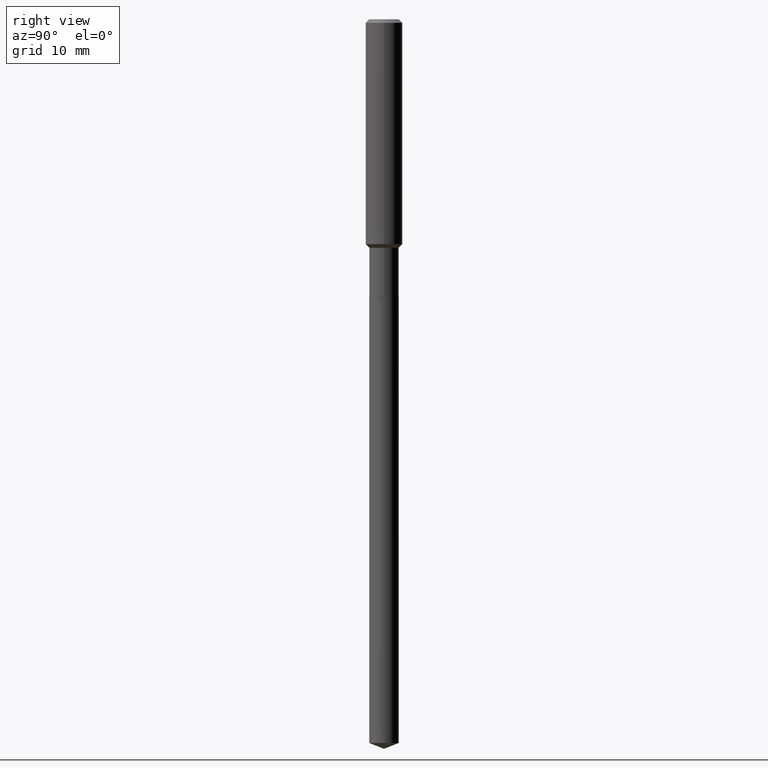
[diagram: clean part render]
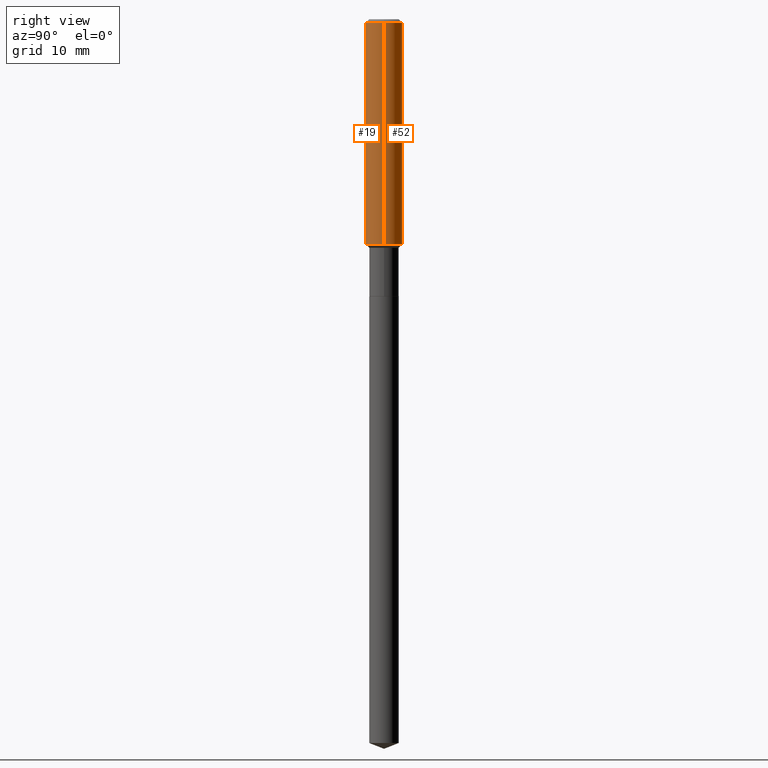
[diagram: same view with one multi-face feature highlighted, each face labeled with its STEP entity id]
A machine part, right view. The highlighted faces form ONE feature: a constant-radius fillet chain: 2 tangent blend faces with common blend radius 2.9997 mm. The faces share edges in the B-rep.
Their STEP definitions:
[1] entity #52 (Cylinder):
#25 = CARTESIAN_POINT ( 'NONE',  ( 5.776197320209327532E-31, -8.246878922347559293E-17, -0.02362000000000014088 ) ) ;
#30 = VERTEX_POINT ( 'NONE', #284 ) ;
#32 = VERTEX_POINT ( 'NONE', #433 ) ;
#34 = EDGE_CURVE ( 'NONE', #174, #32, #347, .T. ) ;
#41 = CARTESIAN_POINT ( 'NONE',  ( 3.531256956131335232E-29, -5.041699053289499522E-15, -1.443999999999999062 ) ) ;
#52 = ADVANCED_FACE ( 'NONE', ( #285 ), #95, .T. ) ;
#66 = AXIS2_PLACEMENT_3D ( 'NONE', #41, #185, #374 ) ;
#71 = DIRECTION ( 'NONE',  ( -2.445468806185136877E-29, 3.491481338843145188E-15, 1.000000000000000000 ) ) ;
#79 = EDGE_LOOP ( 'NONE', ( #301, #117, #363, #485 ) ) ;
#95 = CYLINDRICAL_SURFACE ( 'NONE', #155, 0.1181000000000000799 ) ;
#101 = DIRECTION ( 'NONE',  ( -2.445468806185136597E-29, 3.491481338843145583E-15, 1.000000000000000000 ) ) ;
#105 = EDGE_CURVE ( 'NONE', #32, #170, #373, .T. ) ;
#115 = EDGE_CURVE ( 'NONE', #30, #170, #328, .T. ) ;
#117 = ORIENTED_EDGE ( 'NONE', *, *, #115, .T. ) ;
#122 = EDGE_CURVE ( 'NONE', #174, #30, #279, .T. ) ;
#155 = AXIS2_PLACEMENT_3D ( 'NONE', #391, #101, #471 ) ;
#159 = CARTESIAN_POINT ( 'NONE',  ( 0.1181000000000000799, -8.246878922347486570E-16, 5.758764772215004644E-30 ) ) ;
#170 = VERTEX_POINT ( 'NONE', #256 ) ;
#173 = CARTESIAN_POINT ( 'NONE',  ( 0.1181000000000001632, -5.866386945524249362E-15, -1.443999999999999062 ) ) ;
#174 = VERTEX_POINT ( 'NONE', #173 ) ;
#185 = DIRECTION ( 'NONE',  ( -2.445468806185136597E-29, 3.491481338843145583E-15, 1.000000000000000000 ) ) ;
#228 = VECTOR ( 'NONE', #313, 39.37007874015748143 ) ;
#243 = AXIS2_PLACEMENT_3D ( 'NONE', #25, #431, #384 ) ;
#256 = CARTESIAN_POINT ( 'NONE',  ( -0.1180999999999999966, -1.722932950323807912E-15, -0.02362000000000014088 ) ) ;
#279 = CIRCLE ( 'NONE', #66, 0.1181000000000001632 ) ;
#284 = CARTESIAN_POINT ( 'NONE',  ( -0.1181000000000001632, -4.202548082356820536E-15, -1.443999999999999062 ) ) ;
#285 = FACE_OUTER_BOUND ( 'NONE', #79, .T. ) ;
#301 = ORIENTED_EDGE ( 'NONE', *, *, #122, .T. ) ;
#313 = DIRECTION ( 'NONE',  ( -2.445468806185136877E-29, 3.491481338843145188E-15, 1.000000000000000000 ) ) ;
#328 = LINE ( 'NONE', #411, #443 ) ;
#347 = LINE ( 'NONE', #159, #228 ) ;
#363 = ORIENTED_EDGE ( 'NONE', *, *, #105, .F. ) ;
#373 = CIRCLE ( 'NONE', #243, 0.1180999999999999966 ) ;
#374 = DIRECTION ( 'NONE',  ( 1.000000000000000000, -6.982962677686263555E-15, 0.000000000000000000 ) ) ;
#384 = DIRECTION ( 'NONE',  ( 1.000000000000000000, -6.982962677686266711E-15, 0.000000000000000000 ) ) ;
#391 = CARTESIAN_POINT ( 'NONE',  ( 0.000000000000000000, 0.000000000000000000, 0.000000000000000000 ) ) ;
#411 = CARTESIAN_POINT ( 'NONE',  ( -0.1181000000000000799, 8.391509709326788873E-16, -5.809262341591047988E-30 ) ) ;
#431 = DIRECTION ( 'NONE',  ( -2.445468806185136597E-29, 3.491481338843145583E-15, 1.000000000000000000 ) ) ;
#433 = CARTESIAN_POINT ( 'NONE',  ( 0.1180999999999999966, -9.071566814582237199E-16, -0.02362000000000014088 ) ) ;
#443 = VECTOR ( 'NONE', #71, 39.37007874015748143 ) ;
#471 = DIRECTION ( 'NONE',  ( 1.000000000000000000, -6.982962677686266711E-15, 4.876176775795936353E-29 ) ) ;
#485 = ORIENTED_EDGE ( 'NONE', *, *, #34, .F. ) ;
[2] entity #19 (Cylinder):
#19 = ADVANCED_FACE ( 'NONE', ( #125 ), #200, .T. ) ;
#20 = CARTESIAN_POINT ( 'NONE',  ( 3.531256956131335232E-29, -5.041699053289499522E-15, -1.443999999999999062 ) ) ;
#24 = EDGE_CURVE ( 'NONE', #30, #174, #338, .T. ) ;
#30 = VERTEX_POINT ( 'NONE', #284 ) ;
#32 = VERTEX_POINT ( 'NONE', #433 ) ;
#34 = EDGE_CURVE ( 'NONE', #174, #32, #347, .T. ) ;
#37 = DIRECTION ( 'NONE',  ( -2.445468806185136597E-29, 3.491481338843145583E-15, 1.000000000000000000 ) ) ;
#59 = DIRECTION ( 'NONE',  ( 1.000000000000000000, -6.982962677686263555E-15, 0.000000000000000000 ) ) ;
#71 = DIRECTION ( 'NONE',  ( -2.445468806185136877E-29, 3.491481338843145188E-15, 1.000000000000000000 ) ) ;
#76 = ORIENTED_EDGE ( 'NONE', *, *, #24, .T. ) ;
#98 = AXIS2_PLACEMENT_3D ( 'NONE', #139, #37, #182 ) ;
#115 = EDGE_CURVE ( 'NONE', #30, #170, #328, .T. ) ;
#125 = FACE_OUTER_BOUND ( 'NONE', #444, .T. ) ;
#128 = AXIS2_PLACEMENT_3D ( 'NONE', #20, #201, #59 ) ;
#139 = CARTESIAN_POINT ( 'NONE',  ( 5.776197320209327532E-31, -8.246878922347559293E-17, -0.02362000000000014088 ) ) ;
#151 = ORIENTED_EDGE ( 'NONE', *, *, #184, .F. ) ;
#159 = CARTESIAN_POINT ( 'NONE',  ( 0.1181000000000000799, -8.246878922347486570E-16, 5.758764772215004644E-30 ) ) ;
#170 = VERTEX_POINT ( 'NONE', #256 ) ;
#173 = CARTESIAN_POINT ( 'NONE',  ( 0.1181000000000001632, -5.866386945524249362E-15, -1.443999999999999062 ) ) ;
#174 = VERTEX_POINT ( 'NONE', #173 ) ;
#182 = DIRECTION ( 'NONE',  ( 1.000000000000000000, -6.982962677686266711E-15, 0.000000000000000000 ) ) ;
#184 = EDGE_CURVE ( 'NONE', #170, #32, #271, .T. ) ;
#200 = CYLINDRICAL_SURFACE ( 'NONE', #211, 0.1181000000000000799 ) ;
#201 = DIRECTION ( 'NONE',  ( -2.445468806185136597E-29, 3.491481338843145583E-15, 1.000000000000000000 ) ) ;
#211 = AXIS2_PLACEMENT_3D ( 'NONE', #465, #319, #388 ) ;
#219 = ORIENTED_EDGE ( 'NONE', *, *, #115, .F. ) ;
#228 = VECTOR ( 'NONE', #313, 39.37007874015748143 ) ;
#256 = CARTESIAN_POINT ( 'NONE',  ( -0.1180999999999999966, -1.722932950323807912E-15, -0.02362000000000014088 ) ) ;
#271 = CIRCLE ( 'NONE', #98, 0.1180999999999999966 ) ;
#284 = CARTESIAN_POINT ( 'NONE',  ( -0.1181000000000001632, -4.202548082356820536E-15, -1.443999999999999062 ) ) ;
#313 = DIRECTION ( 'NONE',  ( -2.445468806185136877E-29, 3.491481338843145188E-15, 1.000000000000000000 ) ) ;
#319 = DIRECTION ( 'NONE',  ( -2.445468806185136597E-29, 3.491481338843145583E-15, 1.000000000000000000 ) ) ;
#328 = LINE ( 'NONE', #411, #443 ) ;
#338 = CIRCLE ( 'NONE', #128, 0.1181000000000001632 ) ;
#347 = LINE ( 'NONE', #159, #228 ) ;
#388 = DIRECTION ( 'NONE',  ( 1.000000000000000000, -6.982962677686266711E-15, 4.876176775795936353E-29 ) ) ;
#411 = CARTESIAN_POINT ( 'NONE',  ( -0.1181000000000000799, 8.391509709326788873E-16, -5.809262341591047988E-30 ) ) ;
#433 = CARTESIAN_POINT ( 'NONE',  ( 0.1180999999999999966, -9.071566814582237199E-16, -0.02362000000000014088 ) ) ;
#443 = VECTOR ( 'NONE', #71, 39.37007874015748143 ) ;
#444 = EDGE_LOOP ( 'NONE', ( #219, #76, #450, #151 ) ) ;
#450 = ORIENTED_EDGE ( 'NONE', *, *, #34, .T. ) ;
#465 = CARTESIAN_POINT ( 'NONE',  ( 0.000000000000000000, 0.000000000000000000, 0.000000000000000000 ) ) ;